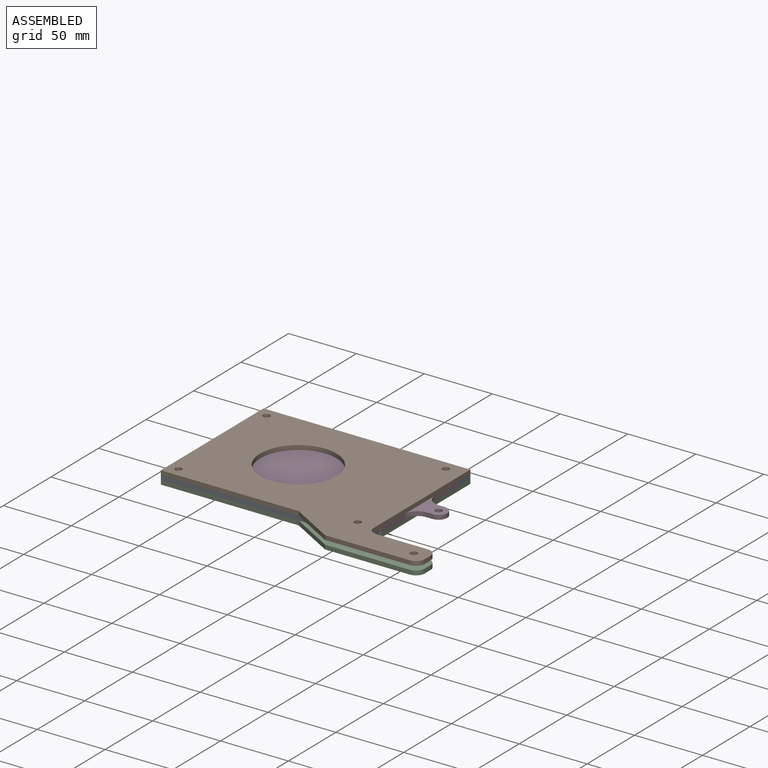
[diagram: assembled view]
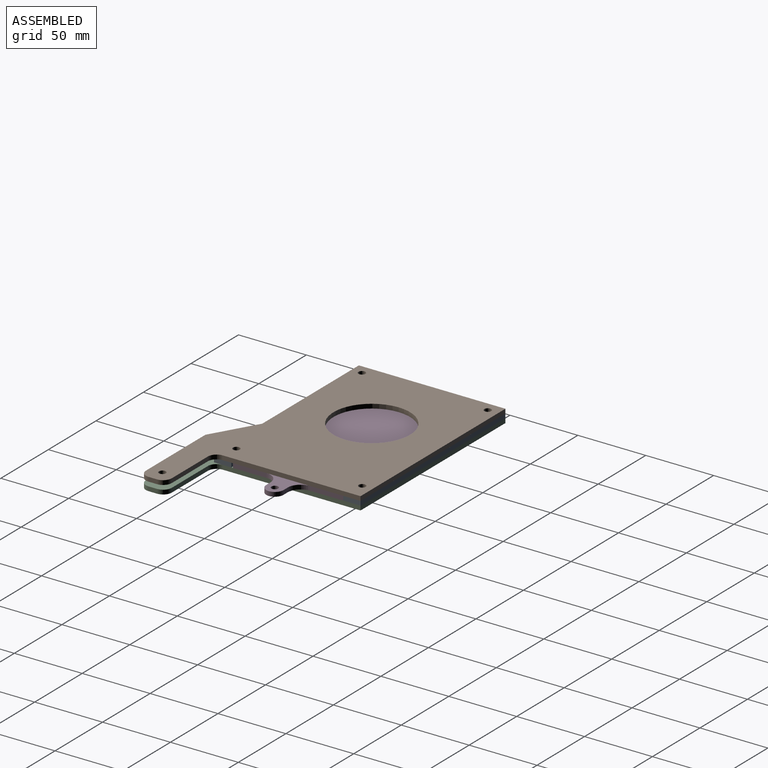
[diagram: assembled view, second angle]
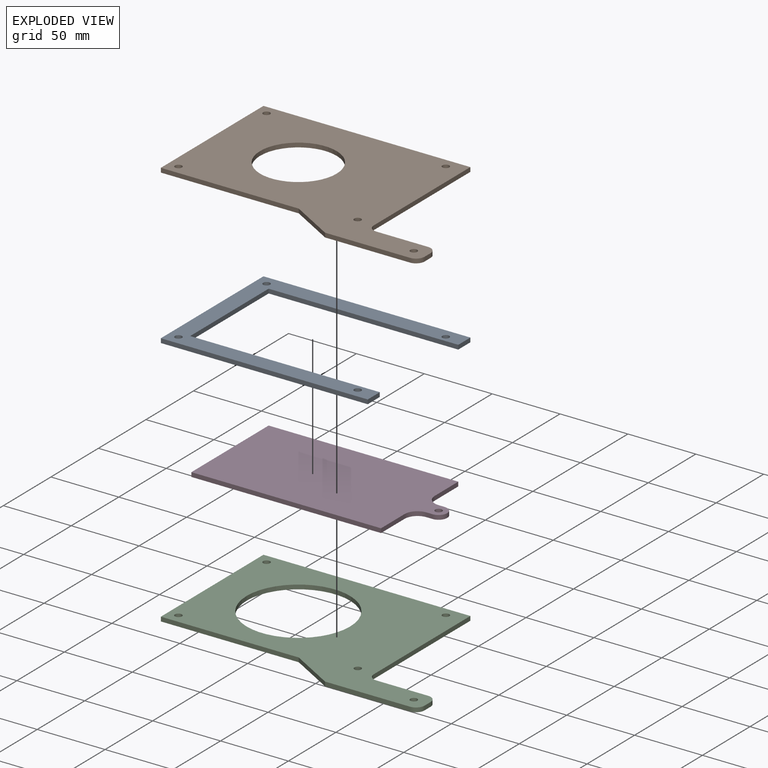
[diagram: exploded view]
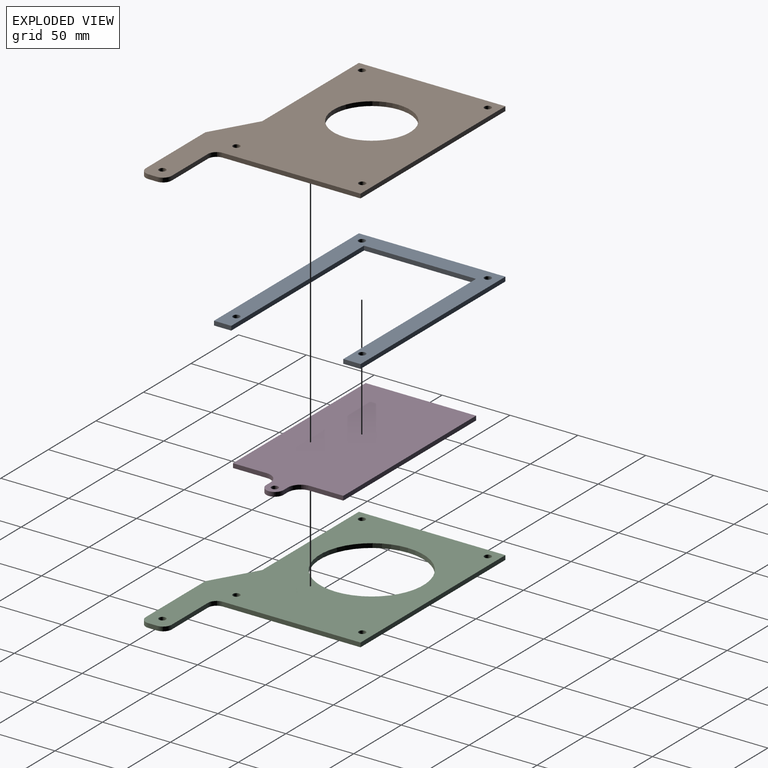
[diagram: exploded view, second angle]
ASSEMBLY  parts=4 mates=8
PART A: 14 faces, bbox 152.4x108x3.2 mm
  f0: plane 12.7x3.18mm, normal (1,0,0), area 40.3mm2, adj f1,f10,f12,f13
  f1: plane 139.7x3.18mm, normal (0,1,0), area 443.5mm2, adj f0,f2,f12,f13
  f2: plane 82.55x3.18mm, normal (1,0,0), area 262.1mm2, adj f1,f3,f12,f13
  f3: plane 139.7x3.18mm, normal (0,-1,0), area 443.5mm2, adj f2,f4,f12,f13
  f4: plane 12.7x3.18mm, normal (1,0,0), area 40.3mm2, adj f3,f5,f12,f13
  f5: plane 152.4x3.18mm, normal (0,1,0), area 483.9mm2, adj f4,f6,f12,f13
  f6: plane 107.95x3.18mm, normal (-1,0,0), area 342.7mm2, adj f5,f10,f12,f13
  f7: cylinder r=2.54mm len=5.08mm, axis (0,0,-1), area 50.7mm2, adj f12,f13
  f8: cylinder r=2.54mm len=5.08mm, axis (0,0,-1), area 50.7mm2, adj f12,f13
  f9: cylinder r=2.54mm len=5.08mm, axis (0,0,-1), area 50.7mm2, adj f12,f13
  f10: plane 152.4x3.18mm, normal (0,-1,0), area 483.9mm2, adj f0,f6,f12,f13
  f11: cylinder r=2.54mm len=5.08mm, axis (0,0,-1), area 50.7mm2, adj f12,f13
  f12: plane 152.4x107.95mm, normal (0,0,1), area 4838.3mm2, adj f0,f1,f2,f3,f4,f5,f6,f7
  f13: plane 152.4x107.95mm, normal (0,0,-1), area 4838.3mm2, adj f0,f1,f2,f3,f4,f5,f6,f7
PART B: 19 faces, bbox 203.2x127x3.2 mm
  f0: cylinder r=6.35mm len=6.35mm, axis (0,0,-1), area 31.7mm2, adj f1,f15,f17,f18
  f1: plane 101.6x3.18mm, normal (1,0,0), area 322.6mm2, adj f0,f2,f17,f18
  f2: plane 152.4x3.18mm, normal (0,1,0), area 483.9mm2, adj f1,f3,f17,f18
  f3: plane 107.95x3.18mm, normal (-1,0,0), area 342.7mm2, adj f2,f4,f17,f18
  f4: plane 101.6x3.18mm, normal (0,-1,0), area 322.6mm2, adj f3,f5,f17,f18
  f5: plane 32.72x19.05mm, normal (-0.5,-0.86,0), area 120.2mm2, adj f4,f6,f17,f18
  f6: plane 62.53x3.18mm, normal (0,-1,0), area 198.5mm2, adj f5,f7,f17,f18
  f7: cylinder r=6.35mm len=6.35mm, axis (0,0,-1), area 31.7mm2, adj f6,f8,f17,f18
  f8: plane 6.35x3.18mm, normal (1,0,0), area 20.2mm2, adj f7,f9,f17,f18
  f9: cylinder r=6.35mm len=6.35mm, axis (0,0,-1), area 31.7mm2, adj f8,f15,f17,f18
  f10: cylinder r=2.54mm len=5.08mm, axis (0,0,-1), area 50.7mm2, adj f17,f18
  f11: cylinder r=2.54mm len=5.08mm, axis (0,0,-1), area 50.7mm2, adj f17,f18
  f12: cylinder r=2.54mm len=5.08mm, axis (0,0,-1), area 50.7mm2, adj f17,f18
  f13: cylinder r=2.54mm len=5.08mm, axis (0,0,-1), area 50.7mm2, adj f17,f18
  f14: cylinder r=2.54mm len=5.08mm, axis (0,0,-1), area 50.7mm2, adj f17,f18
  f15: plane 38.1x3.18mm, normal (0,1,0), area 121mm2, adj f0,f9,f17,f18
  f16: cylinder r=28.19mm len=56.39mm, axis (0,0,-1), area 562.4mm2, adj f17,f18
  f17: plane 203.2x127mm, normal (0,0,1), area 15468.1mm2, adj f0,f1,f2,f3,f4,f5,f6,f7
  f18: plane 203.2x127mm, normal (0,0,-1), area 15468.1mm2, adj f0,f1,f2,f3,f4,f5,f6,f7
PART C: 19 faces, bbox 203.2x127x3.2 mm
  f0: cylinder r=6.35mm len=6.35mm, axis (0,0,-1), area 31.7mm2, adj f1,f15,f17,f18
  f1: plane 101.6x3.18mm, normal (1,0,0), area 322.6mm2, adj f0,f2,f17,f18
  f2: plane 152.4x3.18mm, normal (0,1,0), area 483.9mm2, adj f1,f3,f17,f18
  f3: plane 107.95x3.18mm, normal (-1,0,0), area 342.7mm2, adj f2,f4,f17,f18
  f4: plane 101.6x3.18mm, normal (0,-1,0), area 322.6mm2, adj f3,f5,f17,f18
  f5: plane 32.72x19.05mm, normal (-0.5,-0.86,0), area 120.2mm2, adj f4,f6,f17,f18
  f6: plane 62.53x3.18mm, normal (0,-1,0), area 198.5mm2, adj f5,f7,f17,f18
  f7: cylinder r=6.35mm len=6.35mm, axis (0,0,-1), area 31.7mm2, adj f6,f8,f17,f18
  f8: plane 6.35x3.18mm, normal (1,0,0), area 20.2mm2, adj f7,f9,f17,f18
  f9: cylinder r=6.35mm len=6.35mm, axis (0,0,-1), area 31.7mm2, adj f8,f15,f17,f18
  f10: cylinder r=2.54mm len=5.08mm, axis (0,0,-1), area 50.7mm2, adj f17,f18
  f11: cylinder r=2.54mm len=5.08mm, axis (0,0,-1), area 50.7mm2, adj f17,f18
  f12: cylinder r=2.54mm len=5.08mm, axis (0,0,-1), area 50.7mm2, adj f17,f18
  f13: cylinder r=2.54mm len=5.08mm, axis (0,0,-1), area 50.7mm2, adj f17,f18
  f14: cylinder r=38.1mm len=76.2mm, axis (0,0,-1), area 760.1mm2, adj f17,f18
  f15: plane 38.1x3.18mm, normal (0,1,0), area 121mm2, adj f0,f9,f17,f18
  f16: cylinder r=2.54mm len=5.08mm, axis (0,0,-1), area 50.7mm2, adj f17,f18
  f17: plane 203.2x127mm, normal (0,0,1), area 13405mm2, adj f0,f1,f2,f3,f4,f5,f6,f7
  f18: plane 203.2x127mm, normal (0,0,-1), area 13405mm2, adj f0,f1,f2,f3,f4,f5,f6,f7
PART D: 13 faces, bbox 160x81.3x3.2 mm
  f0: plane 4.45x3.18mm, normal (0,-1,0), area 14.1mm2, adj f1,f9,f11,f12
  f1: cylinder r=6.35mm len=12.7mm, axis (0,0,-1), area 63.3mm2, adj f0,f2,f11,f12
  f2: plane 4.45x3.18mm, normal (0,1,0), area 14.1mm2, adj f1,f3,f11,f12
  f3: cylinder r=9.53mm len=9.53mm, axis (0,0,-1), area 47.5mm2, adj f2,f4,f11,f12
  f4: plane 24.77x3.18mm, normal (1,0,0), area 78.6mm2, adj f3,f5,f11,f12
  f5: plane 139.7x3.18mm, normal (0,1,0), area 443.5mm2, adj f4,f6,f11,f12
  f6: plane 81.28x3.18mm, normal (-1,0,0), area 258.1mm2, adj f5,f7,f11,f12
  f7: plane 139.7x3.18mm, normal (0,-1,0), area 443.5mm2, adj f6,f8,f11,f12
  f8: plane 24.77x3.18mm, normal (1,0,0), area 78.6mm2, adj f7,f9,f11,f12
  f9: cylinder r=9.53mm len=9.53mm, axis (0,0,-1), area 47.5mm2, adj f0,f8,f11,f12
  f10: cylinder r=2.54mm len=5.08mm, axis (0,0,-1), area 50.7mm2, adj f11,f12
  f11: plane 160.02x81.28mm, normal (0,0,1), area 11614.2mm2, adj f0,f1,f2,f3,f4,f5,f6,f7
  f12: plane 160.02x81.28mm, normal (0,0,-1), area 11614.2mm2, adj f0,f1,f2,f3,f4,f5,f6,f7
PLACE A t=(115.2,-39.04,-12.5)mm
PLACE B t=(90.46,-35.87,-9.32)mm
PLACE C t=(-9.37,16.72,-15.67)mm fixed
PLACE D t=(-60.17,-23.28,-12.5)mm
MATE planar A.f3 <-> D.f5  axis (0,-1,0) through (9.68,58,-10.91)mm
MATE cylindrical A.f8 <-> B.f12  axis (0,0,1) through (66.83,-29.63,-9.32)mm
MATE cylindrical A.f11 <-> B.f14  axis (0,0,1) through (-65.25,63.08,-9.32)mm
MATE cylindrical C.f11 <-> A.f8  axis (0,0,1) through (66.83,-29.63,-12.5)mm
MATE cylindrical C.f13 <-> A.f11  axis (0,0,-1) through (-65.25,63.08,-12.5)mm
MATE planar A.f12 <-> B.f18  axis (0,0,1) through (-72.87,16.72,-9.32)mm
MATE planar A.f13 <-> C.f17  axis (0,0,-1) through (-72.87,16.72,-12.5)mm
MATE planar C.f17 <-> D.f12  axis (0,0,1) through (17.53,9.25,-12.5)mm
